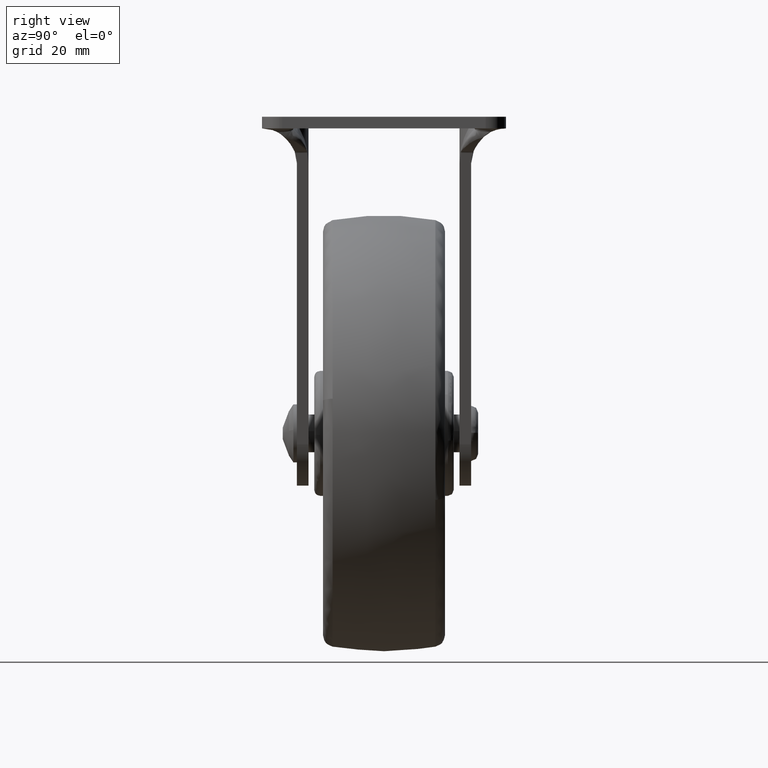
[diagram: clean part render]
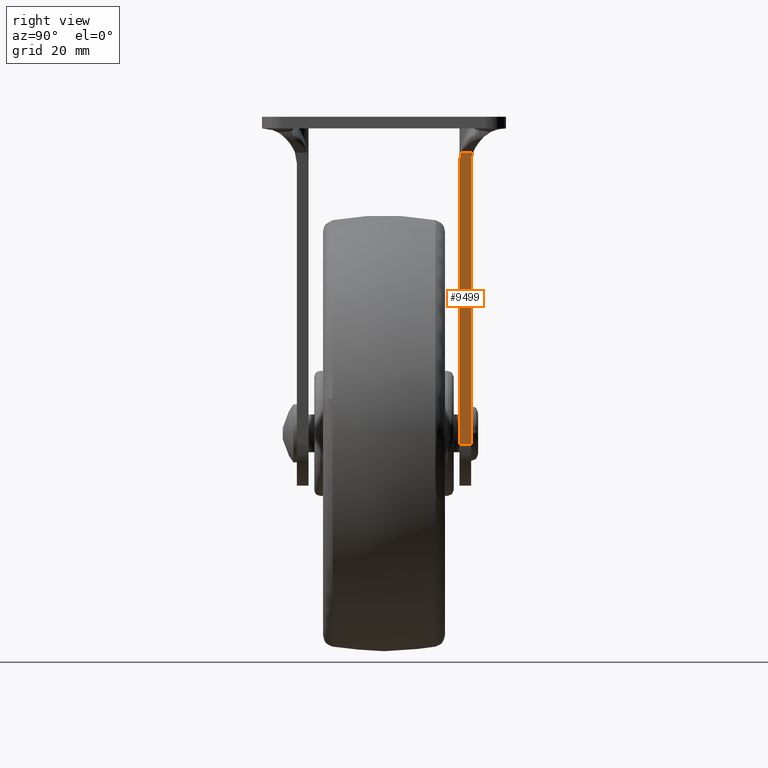
[diagram: same view with one face highlighted and labeled with its STEP entity id]
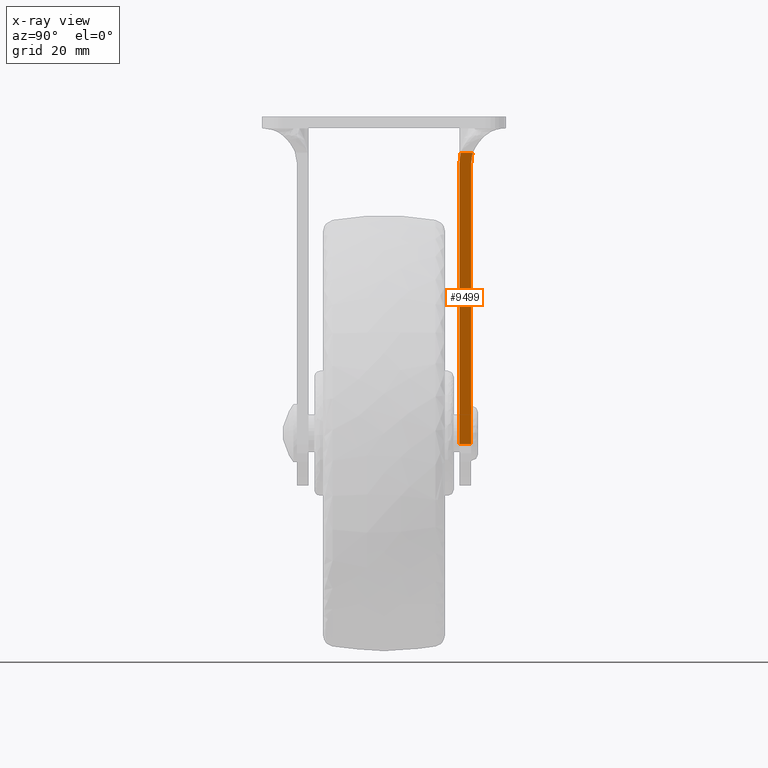
[diagram: x-ray of the same camera — body ghosted, the highlighted face saturated]
A machine part, right view. The second image highlights one B-rep face of the part: STEP entity #9499.
The next image is the same camera in x-ray: the body ghosted, the highlighted face saturated — about 0% of this face is hidden behind the body in this view.
In plain terms, the highlighted face is a freeform B-spline surface patch.
Its self-contained STEP definition (entity closure, byte-faithful):
#5888=CARTESIAN_POINT('',(16.676874599543950,15.267062302631251,48.270148400018698));
#5889=VERTEX_POINT('',#5888);
#5910=CARTESIAN_POINT('',(16.676874599543851,13.344803026952620,48.270148400018698));
#5911=VERTEX_POINT('',#5910);
#5919=CARTESIAN_POINT('',(16.676874599543950,15.267062302631251,48.270148400018698));
#5920=CARTESIAN_POINT('',(16.676874599543851,13.344803026952620,48.270148400018698));
#5921=QUASI_UNIFORM_CURVE('',1,(#5919,#5920),.UNSPECIFIED.,.F.,.U.);
#5922=EDGE_CURVE('',#5889,#5911,#5921,.T.);
#6159=CARTESIAN_POINT('',(16.680923324410351,13.203894586046840,48.294642129933003));
#6160=VERTEX_POINT('',#6159);
#6187=CARTESIAN_POINT('',(16.676874599543851,13.344803026952620,48.270148400018698));
#6188=CARTESIAN_POINT('',(16.676895055320180,13.296771002763149,48.270272152132307));
#6189=CARTESIAN_POINT('',(16.678123216426080,13.248812995496330,48.277702206633727));
#6190=CARTESIAN_POINT('',(16.680923324410351,13.203894586046840,48.294642129933003));
#6191=QUASI_UNIFORM_CURVE('',3,(#6187,#6188,#6189,#6190),.UNSPECIFIED.,.F.,.U.);
#6192=EDGE_CURVE('',#5911,#6160,#6191,.T.);
#8108=CARTESIAN_POINT('',(8.386210000000000,13.0,-1.886211000000000));
#8109=VERTEX_POINT('',#8108);
#8125=CARTESIAN_POINT('',(16.384275478484650,13.0,46.500000000000000));
#8126=VERTEX_POINT('',#8125);
#8127=CARTESIAN_POINT('',(16.384275478484650,13.0,46.500000000000000));
#8128=CARTESIAN_POINT('',(8.386210000000000,13.0,-1.886211000000000));
#8129=QUASI_UNIFORM_CURVE('',1,(#8127,#8128),.UNSPECIFIED.,.F.,.U.);
#8130=EDGE_CURVE('',#8126,#8109,#8129,.T.);
#8174=CARTESIAN_POINT('',(16.384275478484749,13.0,46.500000000000000));
#8175=CARTESIAN_POINT('',(16.534513952159948,12.999999999999998,47.408903597641348));
#8176=CARTESIAN_POINT('',(16.680923324410351,13.203894586046861,48.294642129933003));
#8184=(BOUNDED_CURVE()B_SPLINE_CURVE(2,(#8174,#8175,#8176),.UNSPECIFIED.,.F.,.U.)CURVE()GEOMETRIC_REPRESENTATION_ITEM()QUASI_UNIFORM_CURVE()RATIONAL_B_SPLINE_CURVE((1.0,0.993607864487854,1.0))REPRESENTATION_ITEM(''));
#8185=EDGE_CURVE('',#8126,#6160,#8184,.T.);
#8755=CARTESIAN_POINT('',(8.386210000000000,15.0,-1.886211000000000));
#8756=VERTEX_POINT('',#8755);
#8772=CARTESIAN_POINT('',(8.386210000000000,15.0,-1.886211000000000));
#8773=CARTESIAN_POINT('',(8.386210000000000,13.0,-1.886211000000000));
#8774=QUASI_UNIFORM_CURVE('',1,(#8772,#8773),.UNSPECIFIED.,.F.,.U.);
#8775=EDGE_CURVE('',#8756,#8109,#8774,.T.);
#8935=CARTESIAN_POINT('',(16.384275478484700,15.0,46.500000000000000));
#8936=VERTEX_POINT('',#8935);
#8942=CARTESIAN_POINT('',(16.384275478484700,15.0,46.500000000000000));
#8943=CARTESIAN_POINT('',(8.386210000000000,15.0,-1.886211000000000));
#8944=QUASI_UNIFORM_CURVE('',1,(#8942,#8943),.UNSPECIFIED.,.F.,.U.);
#8945=EDGE_CURVE('',#8936,#8756,#8944,.T.);
#9011=CARTESIAN_POINT('',(16.384275478484749,15.0,46.500000000000000));
#9012=CARTESIAN_POINT('',(16.533905074382869,14.999999999999998,47.405220045828258));
#9013=CARTESIAN_POINT('',(16.676874599543940,15.267062302631290,48.270148400018698));
#9021=(BOUNDED_CURVE()B_SPLINE_CURVE(2,(#9011,#9012,#9013),.UNSPECIFIED.,.F.,.U.)CURVE()GEOMETRIC_REPRESENTATION_ITEM()QUASI_UNIFORM_CURVE()RATIONAL_B_SPLINE_CURVE((1.0,0.988809793698514,1.0))REPRESENTATION_ITEM(''));
#9022=EDGE_CURVE('',#8936,#5889,#9021,.T.);
#9485=CARTESIAN_POINT('',(17.095244472482300,12.886760250477110,50.801177059698773));
#9486=CARTESIAN_POINT('',(7.971888851927966,12.886760250477110,-4.392745929765759));
#9487=CARTESIAN_POINT('',(17.095244472482300,15.380301950808549,50.801177059698773));
#9488=CARTESIAN_POINT('',(7.971888851927966,15.380301950808549,-4.392745929765759));
#9489=B_SPLINE_SURFACE_WITH_KNOTS('',1,1,((#9485,#9487),(#9486,#9488)),.UNSPECIFIED.,.F.,.F.,.U.,(2,2),(2,2),(0.0,55.942870437134722),(0.0,2.493541700331440),.UNSPECIFIED.);
#9490=ORIENTED_EDGE('',*,*,#9022,.T.);
#9491=ORIENTED_EDGE('',*,*,#5922,.T.);
#9492=ORIENTED_EDGE('',*,*,#6192,.T.);
#9493=ORIENTED_EDGE('',*,*,#8185,.F.);
#9494=ORIENTED_EDGE('',*,*,#8130,.T.);
#9495=ORIENTED_EDGE('',*,*,#8775,.F.);
#9496=ORIENTED_EDGE('',*,*,#8945,.F.);
#9497=EDGE_LOOP('',(#9490,#9491,#9492,#9493,#9494,#9495,#9496));
#9498=FACE_OUTER_BOUND('',#9497,.T.);
#9499=ADVANCED_FACE('',(#9498),#9489,.T.);